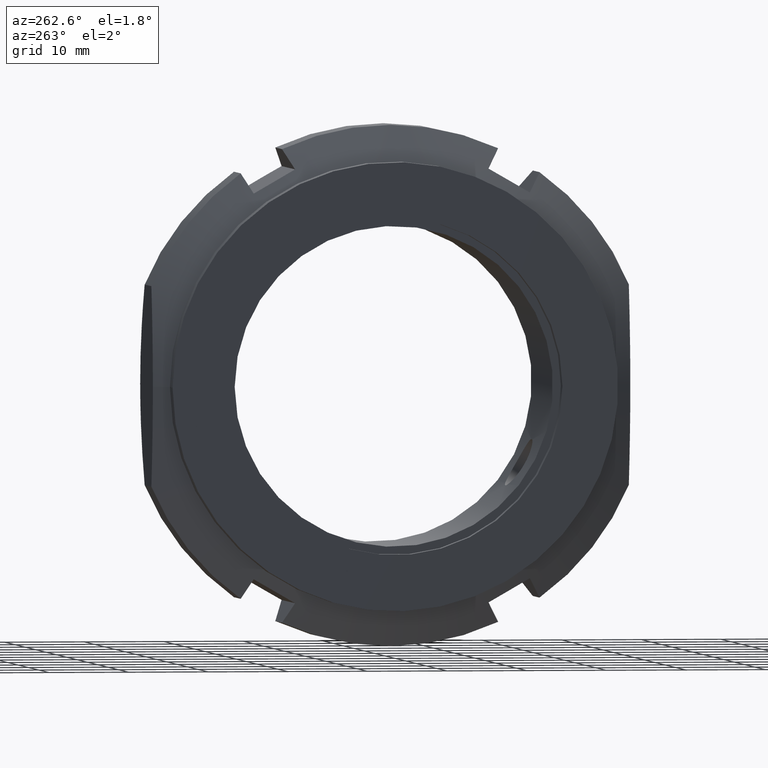
[diagram: clean part render]
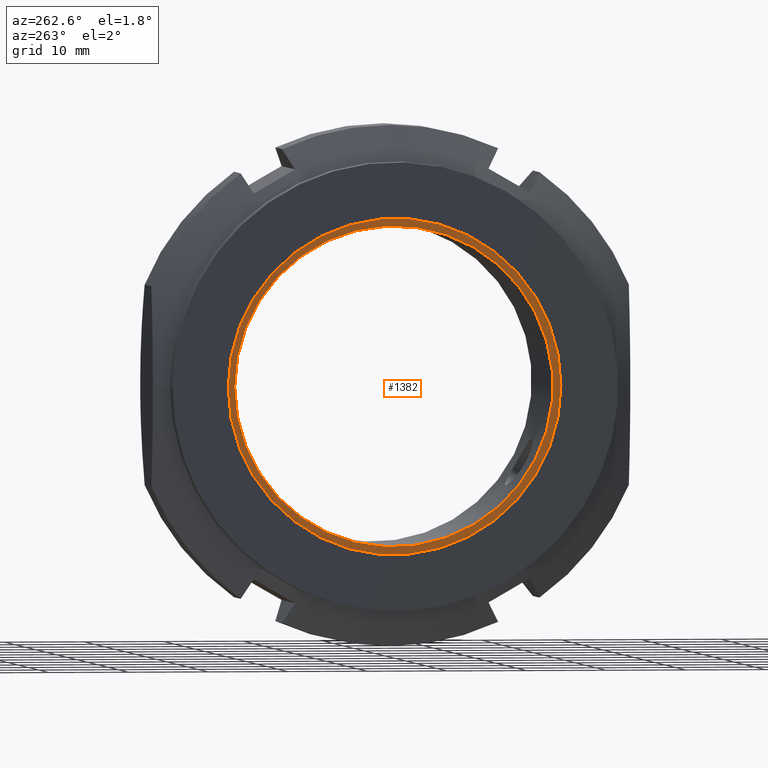
[diagram: same view with one face highlighted and labeled with its STEP entity id]
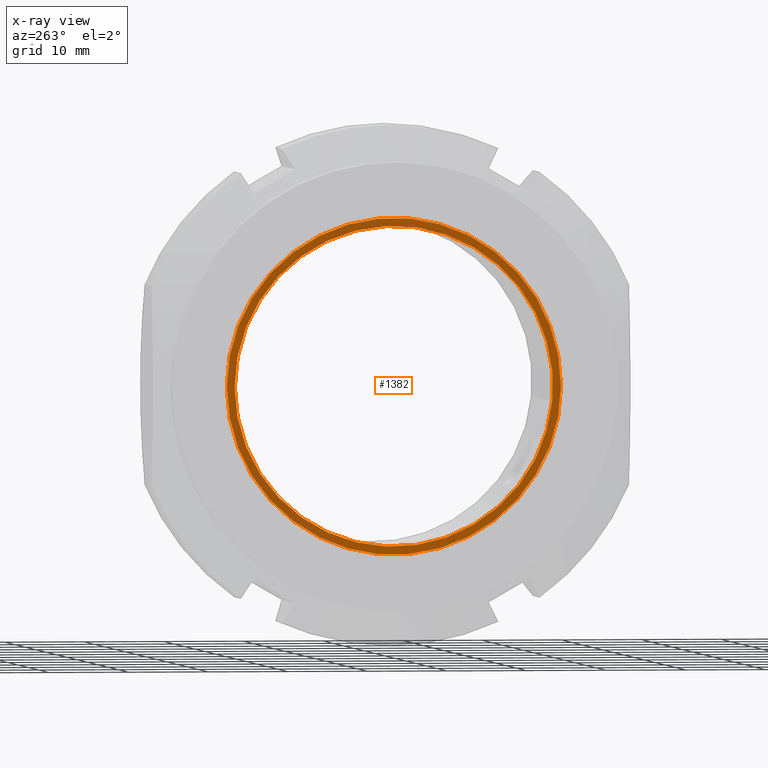
[diagram: x-ray of the same camera — body ghosted, the highlighted face saturated]
A machine part, auxiliary view. The second image highlights one B-rep face of the part: STEP entity #1382.
The next image is the same camera in x-ray: the body ghosted, the highlighted face saturated — about 0% of this face is hidden behind the body in this view.
In plain terms, the highlighted planar face has unit normal (-1, 0, 0).
Its self-contained STEP definition (entity closure, byte-faithful):
#1355=CARTESIAN_POINT('',(1.499999999999995,20.5,0.0));
#1356=DIRECTION('',(-1.0,0.0,0.0));
#1357=DIRECTION('',(0.0,0.0,1.0));
#1358=AXIS2_PLACEMENT_3D('',#1355,#1356,#1357);
#1359=PLANE('',#1358);
#1360=CARTESIAN_POINT('',(1.499999999999995,21.0,0.0));
#1361=VERTEX_POINT('',#1360);
#1362=CARTESIAN_POINT('',(1.499999999999995,0.0,0.0));
#1363=DIRECTION('',(1.0,0.0,0.0));
#1364=DIRECTION('',(0.0,1.0,0.0));
#1365=AXIS2_PLACEMENT_3D('',#1362,#1363,#1364);
#1366=CIRCLE('',#1365,21.0);
#1367=EDGE_CURVE('',#1361,#1361,#1366,.T.);
#1368=ORIENTED_EDGE('',*,*,#1367,.F.);
#1369=EDGE_LOOP('',(#1368));
#1370=FACE_OUTER_BOUND('',#1369,.T.);
#1371=CARTESIAN_POINT('',(1.499999999999995,20.0,0.0));
#1372=VERTEX_POINT('',#1371);
#1373=CARTESIAN_POINT('',(1.499999999999995,0.0,0.0));
#1374=DIRECTION('',(1.0,0.0,0.0));
#1375=DIRECTION('',(0.0,1.0,0.0));
#1376=AXIS2_PLACEMENT_3D('',#1373,#1374,#1375);
#1377=CIRCLE('',#1376,20.0);
#1378=EDGE_CURVE('',#1372,#1372,#1377,.T.);
#1379=ORIENTED_EDGE('',*,*,#1378,.T.);
#1380=EDGE_LOOP('',(#1379));
#1381=FACE_BOUND('',#1380,.T.);
#1382=ADVANCED_FACE('',(#1370,#1381),#1359,.T.);